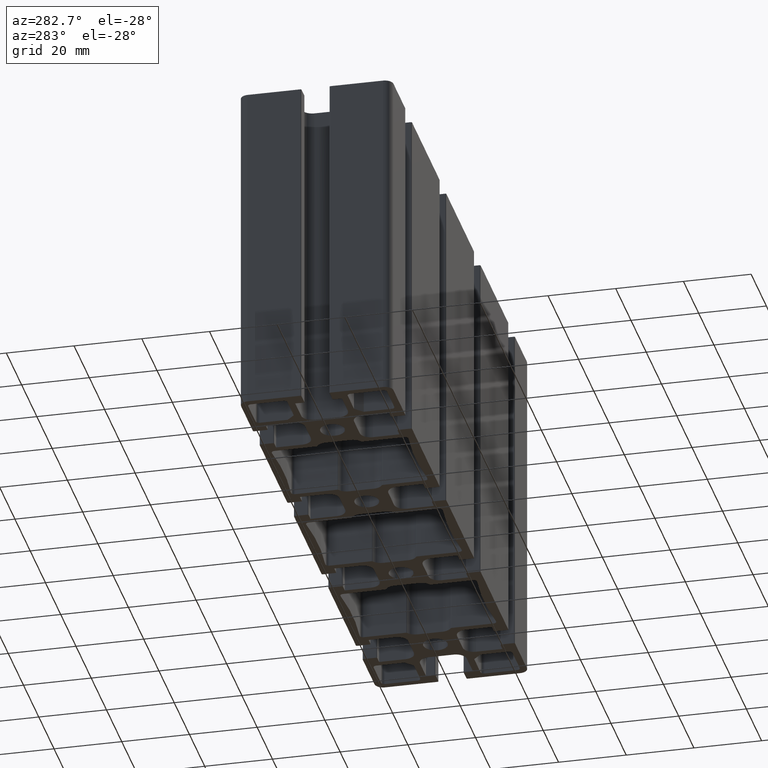
[diagram: clean part render]
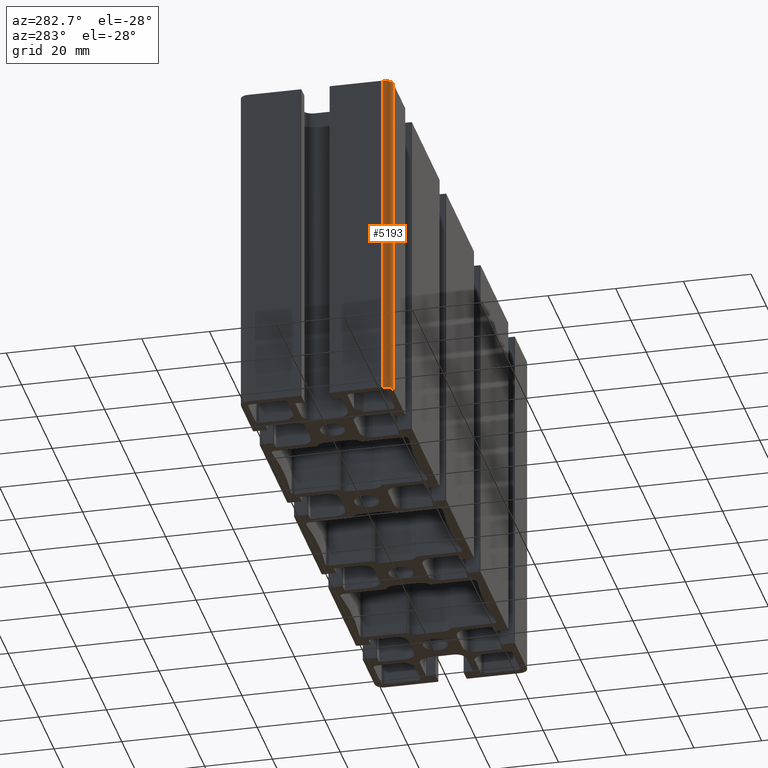
[diagram: same view with one face highlighted and labeled with its STEP entity id]
A machine part, auxiliary view. The second image highlights one B-rep face of the part: STEP entity #5193.
In plain terms, the highlighted cylindrical surface (edge-blend (fillet) strip) has radius 2.5 mm, axis along (0, 0, 1).
Its self-contained STEP definition (entity closure, byte-faithful):
#266=CIRCLE('',#5676,2.5);
#270=CIRCLE('',#5683,2.5);
#386=CYLINDRICAL_SURFACE('',#5682,2.5);
#641=FACE_OUTER_BOUND('',#914,.T.);
#914=EDGE_LOOP('',(#4523,#4524,#4525,#4526));
#1428=LINE('',#8664,#1960);
#1459=LINE('',#8727,#1991);
#1960=VECTOR('',#7116,100.);
#1991=VECTOR('',#7183,100.);
#2491=VERTEX_POINT('',#8661);
#2492=VERTEX_POINT('',#8663);
#2503=VERTEX_POINT('',#8713);
#2506=VERTEX_POINT('',#8726);
#3228=EDGE_CURVE('',#2491,#2492,#1428,.T.);
#3256=EDGE_CURVE('',#2503,#2492,#266,.T.);
#3264=EDGE_CURVE('',#2506,#2503,#1459,.T.);
#3266=EDGE_CURVE('',#2506,#2491,#270,.T.);
#4523=ORIENTED_EDGE('',*,*,#3256,.T.);
#4524=ORIENTED_EDGE('',*,*,#3228,.F.);
#4525=ORIENTED_EDGE('',*,*,#3266,.F.);
#4526=ORIENTED_EDGE('',*,*,#3264,.T.);
#5193=ADVANCED_FACE('',(#641),#386,.T.);
#5676=AXIS2_PLACEMENT_3D('',#8714,#7167,#7168);
#5682=AXIS2_PLACEMENT_3D('',#8729,#7185,#7186);
#5683=AXIS2_PLACEMENT_3D('',#8730,#7187,#7188);
#7116=DIRECTION('',(0.,0.,1.));
#7167=DIRECTION('center_axis',(0.,0.,-1.));
#7168=DIRECTION('ref_axis',(-1.,-1.77635683940025E-15,0.));
#7183=DIRECTION('',(0.,0.,1.));
#7185=DIRECTION('center_axis',(0.,0.,1.));
#7186=DIRECTION('ref_axis',(-1.,-1.77635683940025E-15,0.));
#7187=DIRECTION('center_axis',(0.,0.,-1.));
#7188=DIRECTION('ref_axis',(-1.,-1.77635683940025E-15,0.));
#8661=CARTESIAN_POINT('',(-90.,-20.,0.));
#8663=CARTESIAN_POINT('',(-90.,-20.,100.));
#8664=CARTESIAN_POINT('',(-90.,-20.,0.));
#8713=CARTESIAN_POINT('',(-87.5,-22.5,100.));
#8714=CARTESIAN_POINT('Origin',(-87.5,-20.,100.));
#8726=CARTESIAN_POINT('',(-87.5,-22.5,0.));
#8727=CARTESIAN_POINT('',(-87.5,-22.5,0.));
#8729=CARTESIAN_POINT('Origin',(-87.5,-20.,0.));
#8730=CARTESIAN_POINT('Origin',(-87.5,-20.,0.));